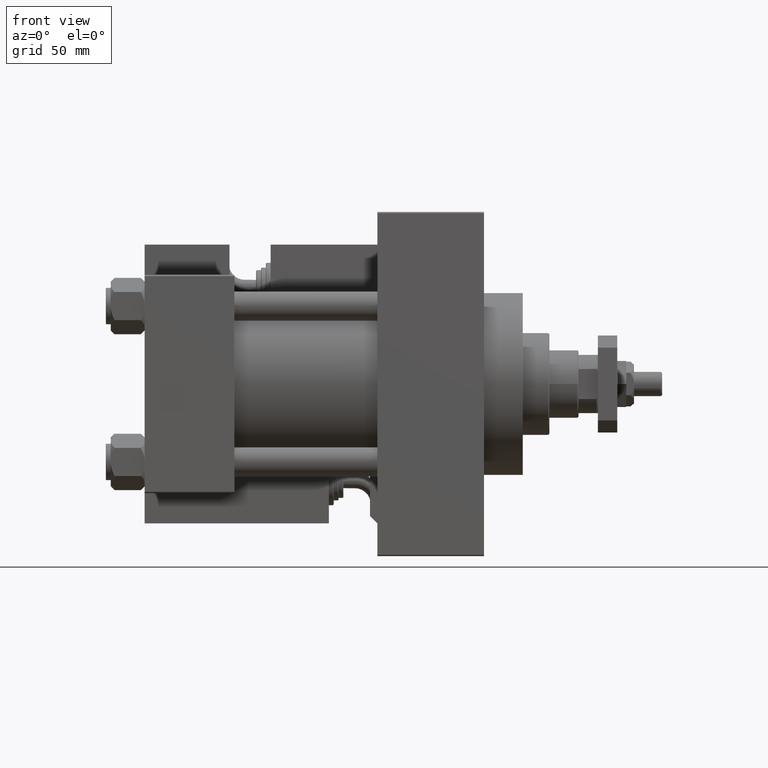
[diagram: clean part render]
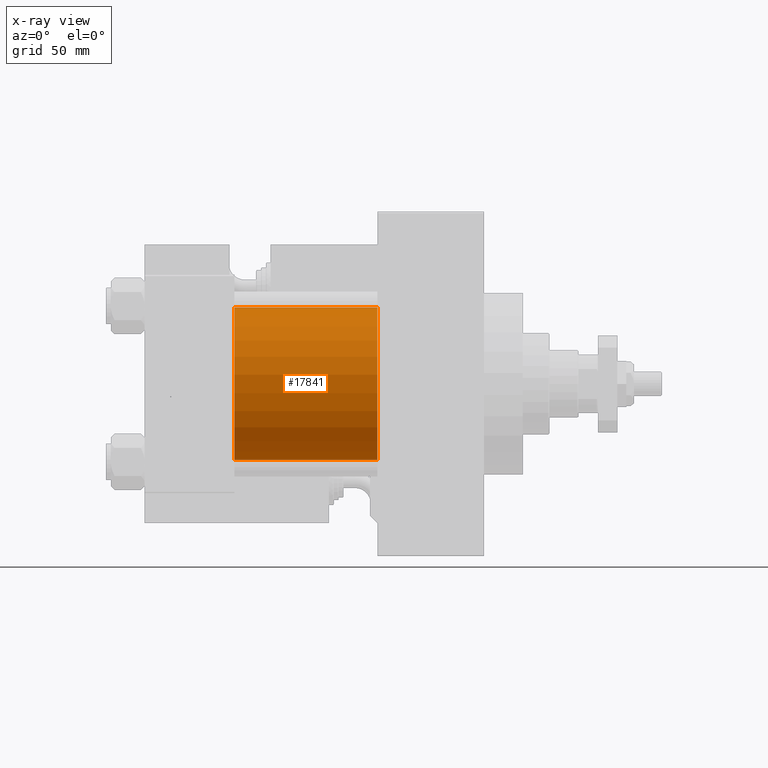
[diagram: x-ray — body ghosted, one internal face saturated and labeled with its STEP entity id]
A machine part, front view, then the same camera in x-ray: the body is ghosted and one INTERNAL B-rep face — a face not visible from any outside direction — is saturated and labeled: STEP entity #17841.
In plain terms, the highlighted cylindrical surface (partial cylindrical patch) has radius 31.5 mm, axis along (-1, -0, -0).
Its self-contained STEP definition (entity closure, byte-faithful):
#79 = EDGE_CURVE ( 'NONE', #1552, #40954, #10696, .T. ) ;
#765 = VERTEX_POINT ( 'NONE', #17070 ) ;
#1080 = DIRECTION ( 'NONE',  ( 0.000000000000000000, 0.000000000000000000, -1.000000000000000000 ) ) ;
#1340 = EDGE_CURVE ( 'NONE', #40954, #765, #30491, .T. ) ;
#1552 = VERTEX_POINT ( 'NONE', #10468 ) ;
#3599 = ORIENTED_EDGE ( 'NONE', *, *, #10931, .F. ) ;
#4503 = DIRECTION ( 'NONE',  ( -1.000000000000000000, -0.000000000000000000, -0.000000000000000000 ) ) ;
#4764 = VERTEX_POINT ( 'NONE', #45351 ) ;
#5549 = CARTESIAN_POINT ( 'NONE',  ( 96.00000000000000000, 1.255552203348951850E-15, -31.50000000000000000 ) ) ;
#9299 = EDGE_LOOP ( 'NONE', ( #45924, #46204, #3599, #29294 ) ) ;
#10468 = CARTESIAN_POINT ( 'NONE',  ( 96.00000000000000000, -2.602085213965210642E-15, 31.50000000000000000 ) ) ;
#10696 = CIRCLE ( 'NONE', #41792, 31.50000000000000000 ) ;
#10931 = EDGE_CURVE ( 'NONE', #4764, #765, #35892, .T. ) ;
#11966 = VECTOR ( 'NONE', #12231, 1000.000000000000000 ) ;
#12231 = DIRECTION ( 'NONE',  ( -1.000000000000000000, -0.000000000000000000, -0.000000000000000000 ) ) ;
#14074 = DIRECTION ( 'NONE',  ( -1.000000000000000000, -0.000000000000000000, -0.000000000000000000 ) ) ;
#16076 = VECTOR ( 'NONE', #14074, 1000.000000000000000 ) ;
#17070 = CARTESIAN_POINT ( 'NONE',  ( 37.00000000000000000, 1.255552203348951850E-15, -31.50000000000000000 ) ) ;
#17553 = FACE_OUTER_BOUND ( 'NONE', #9299, .T. ) ;
#17701 = CARTESIAN_POINT ( 'NONE',  ( 96.00000000000000000, 1.255552203348951850E-15, -31.50000000000000000 ) ) ;
#17841 = ADVANCED_FACE ( 'NONE', ( #17553 ), #37866, .F. ) ;
#19109 = DIRECTION ( 'NONE',  ( 0.000000000000000000, 0.000000000000000000, -1.000000000000000000 ) ) ;
#21690 = AXIS2_PLACEMENT_3D ( 'NONE', #53061, #39713, #19109 ) ;
#22205 = CARTESIAN_POINT ( 'NONE',  ( 96.00000000000000000, -2.602085213965210642E-15, 0.000000000000000000 ) ) ;
#28341 = LINE ( 'NONE', #41701, #11966 ) ;
#29294 = ORIENTED_EDGE ( 'NONE', *, *, #36597, .F. ) ;
#30491 = LINE ( 'NONE', #17701, #16076 ) ;
#30861 = AXIS2_PLACEMENT_3D ( 'NONE', #47323, #4503, #50952 ) ;
#35892 = CIRCLE ( 'NONE', #21690, 31.50000000000000000 ) ;
#36597 = EDGE_CURVE ( 'NONE', #1552, #4764, #28341, .T. ) ;
#37866 = CYLINDRICAL_SURFACE ( 'NONE', #30861, 31.50000000000000000 ) ;
#39713 = DIRECTION ( 'NONE',  ( 1.000000000000000000, 0.000000000000000000, 0.000000000000000000 ) ) ;
#39732 = DIRECTION ( 'NONE',  ( 1.000000000000000000, 0.000000000000000000, 0.000000000000000000 ) ) ;
#40954 = VERTEX_POINT ( 'NONE', #5549 ) ;
#41701 = CARTESIAN_POINT ( 'NONE',  ( 96.00000000000000000, -2.602085213965210642E-15, 31.50000000000000000 ) ) ;
#41792 = AXIS2_PLACEMENT_3D ( 'NONE', #22205, #39732, #1080 ) ;
#45351 = CARTESIAN_POINT ( 'NONE',  ( 37.00000000000000000, -2.602085213965210642E-15, 31.50000000000000000 ) ) ;
#45924 = ORIENTED_EDGE ( 'NONE', *, *, #79, .T. ) ;
#46204 = ORIENTED_EDGE ( 'NONE', *, *, #1340, .T. ) ;
#47323 = CARTESIAN_POINT ( 'NONE',  ( 96.00000000000000000, -2.602085213965210642E-15, 0.000000000000000000 ) ) ;
#50952 = DIRECTION ( 'NONE',  ( 0.000000000000000000, 0.000000000000000000, 1.000000000000000000 ) ) ;
#53061 = CARTESIAN_POINT ( 'NONE',  ( 37.00000000000000000, -2.602085213965210642E-15, 0.000000000000000000 ) ) ;